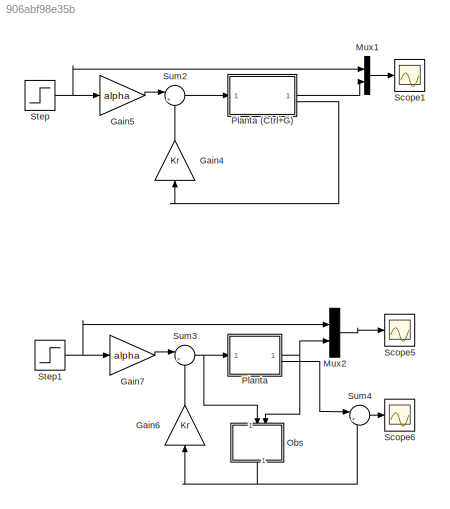
MODEL slx_906abf98e35b
KIND model
CONFIG AbsTol = auto
CONFIG EnableMultiTasking = on
CONFIG FixedStep = auto
CONFIG MaxStep = auto
CONFIG MinStep = auto
CONFIG RelTol = 1e-3
CONFIG SampleTimeConstraint = Unconstrained
CONFIG SolverName = ode45
CONFIG StartTime = 0.0
CONFIG StopTime = 2
BLOCK [Gain] Gain4
  Gain = Kr
  Multiplication = Matrix(K*u)
  NameLocation = right
BLOCK [Gain] Gain5
  Gain = alpha
BLOCK [Gain] Gain6
  Gain = Kr
  Multiplication = Matrix(K*u)
  NameLocation = right
BLOCK [Gain] Gain7
  Gain = alpha
BLOCK [Mux] Mux1
  DisplayOption = bar
  Inputs = 2
BLOCK [Mux] Mux2
  DisplayOption = bar
  Inputs = 2
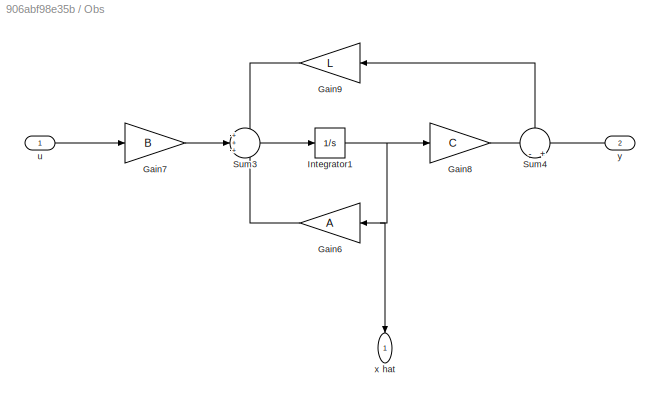
BLOCK [SubSystem] Obs
  NameLocation = left
BLOCK [Gain] Obs/Gain6
  Gain = A
  Multiplication = Matrix(K*u)
  NameLocation = top
BLOCK [Gain] Obs/Gain7
  Gain = B
  Multiplication = Matrix(K*u)
BLOCK [Gain] Obs/Gain8
  Gain = C
  Multiplication = Matrix(K*u)
BLOCK [Gain] Obs/Gain9
  Gain = L
  Multiplication = Matrix(K*u)
  NameLocation = top
BLOCK [Integrator] Obs/Integrator1
  InitialCondition = X0
BLOCK [Sum] Obs/Sum3
  Inputs = +++
BLOCK [Sum] Obs/Sum4
  Inputs = -|+
  NameLocation = right
BLOCK [Inport] Obs/u
BLOCK [Outport] Obs/x hat
  NameLocation = left
BLOCK [Inport] Obs/y
  Port = 2
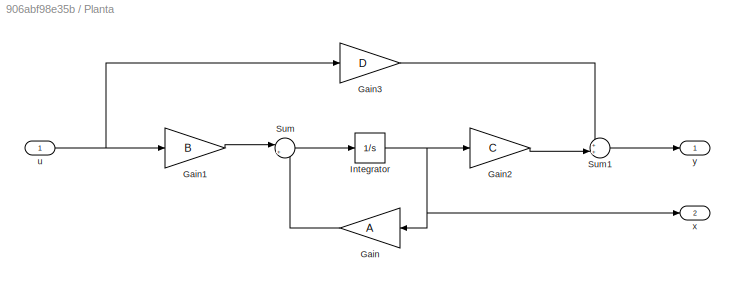
BLOCK [SubSystem] Planta
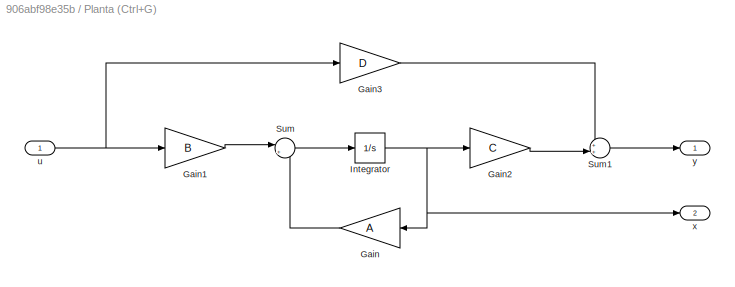
BLOCK [SubSystem] Planta (Ctrl+G)
BLOCK [Gain] Planta (Ctrl+G)/Gain
  Gain = A
  Multiplication = Matrix(K*u)
  NameLocation = top
BLOCK [Gain] Planta (Ctrl+G)/Gain1
  Gain = B
  Multiplication = Matrix(K*u)
BLOCK [Gain] Planta (Ctrl+G)/Gain2
  Gain = C
  Multiplication = Matrix(K*u)
BLOCK [Gain] Planta (Ctrl+G)/Gain3
  Gain = D
  Multiplication = Matrix(K*u)
BLOCK [Integrator] Planta (Ctrl+G)/Integrator
  InitialCondition = x0
BLOCK [Sum] Planta (Ctrl+G)/Sum
  Inputs = |++
BLOCK [Sum] Planta (Ctrl+G)/Sum1
  Inputs = ++|
BLOCK [Inport] Planta (Ctrl+G)/u
BLOCK [Outport] Planta (Ctrl+G)/x
  Port = 2
BLOCK [Outport] Planta (Ctrl+G)/y
BLOCK [Gain] Planta/Gain
  Gain = A
  Multiplication = Matrix(K*u)
  NameLocation = top
BLOCK [Gain] Planta/Gain1
  Gain = B
  Multiplication = Matrix(K*u)
BLOCK [Gain] Planta/Gain2
  Gain = C
  Multiplication = Matrix(K*u)
BLOCK [Gain] Planta/Gain3
  Gain = D
  Multiplication = Matrix(K*u)
BLOCK [Integrator] Planta/Integrator
  InitialCondition = x0
BLOCK [Sum] Planta/Sum
  Inputs = |++
BLOCK [Sum] Planta/Sum1
  Inputs = ++|
BLOCK [Inport] Planta/u
BLOCK [Outport] Planta/x
  Port = 2
BLOCK [Outport] Planta/y
BLOCK [Scope] Scope1
  ActiveDisplayYMaximum = 0.01125
  ActiveDisplayYMinimum = -0.0012499999999999998
  DataLoggingDecimateData = on
  DataLoggingDecimation = 1
  DataLoggingLimitDataPoints = on
  DataLoggingSaveFormat = Structure With Time
  DataLoggingVariableName = ScopeData1
  Floating = off
  GraphicalSettings = {"Style":{"BackgroundColor":[1,1,1],"AxesColor":[1,1,1],"LabelsColor":[0,0,0],"PreserveColors":false,"Visible":[true,true],"LineStyle":["-","--"],"LineWidth":[1,1],"BarWidth":[0.9,0.9],"LineColor":[[0,0,1],[0,0.8,0.2]],"LineFaceAlpha":[1,1],"LineEdgeAlpha":[1,1],"Marker":["none","none"],"FontSize":8.5,"LineTrueColor":[[0,0,1],[0,0.8,0.2]],"ChannelNames":["u(t)","y(t)"],"DefaultLegendLabel":["Step"...<+1812ch>
  MultipleDisplayCache = [{"MaxYLimMag":0.01125,"MaxYLimReal":0.01125,"MinYLimMag":0,"MinYLimReal":-0.0012499999999999998,"PlotAsMagnitudePhase":false,"ShowGrid":true,"ShowLegend":true,"Title":"%<SignalLabel>","YLabel":""}]
  NumInputPorts = 1
  ScopeFrameLocation = window
  ShowLegend = on
  WasSavedAsWebScope = on
  WindowPosition = [488.000000,222.000000,560.000000,420.000000,]
BLOCK [Scope] Scope5
  ActiveDisplayYMaximum = 0.01149049024179721
  ActiveDisplayYMinimum = -0.001710313353439968
  DataLoggingDecimateData = on
  DataLoggingDecimation = 1
  DataLoggingLimitDataPoints = on
  DataLoggingSaveFormat = Structure With Time
  DataLoggingVariableName = ScopeData1
  Floating = off
  GraphicalSettings = {"Style":{"BackgroundColor":[1,1,1],"AxesColor":[1,1,1],"LabelsColor":[0,0,0],"PreserveColors":false,"Visible":[true,true],"LineStyle":["-","--"],"LineWidth":[1,1],"BarWidth":[0.9,0.9],"LineColor":[[0,0,1],[0,0.8,0.2]],"LineFaceAlpha":[1,1],"LineEdgeAlpha":[1,1],"Marker":["none","none"],"FontSize":8.5,"LineTrueColor":[[0,0,1],[0,0.8,0.2]],"ChannelNames":["u(t)","y(t)"],"DefaultLegendLabel":["Step1...<+1863ch>
  MultipleDisplayCache = [{"MaxYLimMag":0.01125,"MaxYLimReal":0.01149049024179721,"MinYLimMag":0,"MinYLimReal":-0.001710313353439968,"PlotAsMagnitudePhase":false,"ShowGrid":true,"ShowLegend":true,"Title":"%<SignalLabel>","YLabel":""}]
  NumInputPorts = 1
  ScopeFrameLocation = window
  ShowLegend = on
  WasSavedAsWebScope = on
  WindowPosition = [488.000000,222.000000,560.000000,420.000000,]
BLOCK [Scope] Scope6
  ActiveDisplayYMaximum = 1
  ActiveDisplayYMinimum = -1
  DataLoggingDecimateData = on
  DataLoggingDecimation = 1
  DataLoggingLimitDataPoints = on
  DataLoggingSaveFormat = Structure With Time
  DataLoggingVariableName = ScopeData2
  Floating = off
  GraphicalSettings = {"AxesScalingProperties":{"AlignXAxis":"Center","AlignYAxis":"Center","AutoScaleXAxisLimits":false,"AxesScaling":"Manual","AxesScalingNumUpdates":10,"ExpandOnly":true,"ScaleAxesLimitsAtStop":false,"XAxisDataRange":100,"YAxisDataRange":80},"DisplayProperties":{"ColorOrder":["auto","auto","auto","auto","auto","auto","auto","auto","auto","auto","auto","auto","auto","auto","auto","auto","auto","auto",...<+1872ch>
  MultipleDisplayCache = [{"MaxYLimMag":1,"MaxYLimReal":1,"MinYLimMag":0,"MinYLimReal":-1,"PlotAsMagnitudePhase":false,"ShowGrid":true,"ShowLegend":true,"Title":"%<SignalLabel>","YLabel":""}]
  NumInputPorts = 1
  ScopeFrameLocation = window
  ShowLegend = on
  WasSavedAsWebScope = on
  WindowPosition = [488.000000,222.000000,560.000000,420.000000,]
BLOCK [Step] Step
  After = r
  SampleTime = 0
BLOCK [Step] Step1
  After = r
  SampleTime = 0
BLOCK [Sum] Sum2
  Inputs = |+-
BLOCK [Sum] Sum3
  Inputs = |+-
BLOCK [Sum] Sum4
  Inputs = |+-
LINE Gain4:1 -> Sum2:2
LINE Gain5:1 -> Sum2:1
LINE Gain6:1 -> Sum3:2
LINE Gain7:1 -> Sum3:1
LINE Mux1:1 -> Scope1:1
LINE Mux2:1 -> Scope5:1
LINE Obs/Gain6:1 -> Obs/Sum3:3
LINE Obs/Gain7:1 -> Obs/Sum3:2
LINE Obs/Gain8:1 -> Obs/Sum4:1
LINE Obs/Gain9:1 -> Obs/Sum3:1
NET Obs/Integrator1:1 -> Obs/Gain6:1, Obs/Gain8:1, Obs/x hat:1
LINE Obs/Sum3:1 -> Obs/Integrator1:1
LINE Obs/Sum4:1 -> Obs/Gain9:1
LINE Obs/u:1 -> Obs/Gain7:1
LINE Obs/y:1 -> Obs/Sum4:2
NET Obs:1 -> Gain6:1, Sum4:2
LINE Planta (Ctrl+G)/Gain1:1 -> Planta (Ctrl+G)/Sum:1
LINE Planta (Ctrl+G)/Gain2:1 -> Planta (Ctrl+G)/Sum1:2
LINE Planta (Ctrl+G)/Gain3:1 -> Planta (Ctrl+G)/Sum1:1
LINE Planta (Ctrl+G)/Gain:1 -> Planta (Ctrl+G)/Sum:2
NET Planta (Ctrl+G)/Integrator:1 -> Planta (Ctrl+G)/Gain2:1, Planta (Ctrl+G)/Gain:1, Planta (Ctrl+G)/x:1
LINE Planta (Ctrl+G)/Sum1:1 -> Planta (Ctrl+G)/y:1
LINE Planta (Ctrl+G)/Sum:1 -> Planta (Ctrl+G)/Integrator:1
NET Planta (Ctrl+G)/u:1 -> Planta (Ctrl+G)/Gain1:1, Planta (Ctrl+G)/Gain3:1
LINE Planta (Ctrl+G):1 -> Mux1:2
LINE Planta (Ctrl+G):2 -> Gain4:1
LINE Planta/Gain1:1 -> Planta/Sum:1
LINE Planta/Gain2:1 -> Planta/Sum1:2
LINE Planta/Gain3:1 -> Planta/Sum1:1
LINE Planta/Gain:1 -> Planta/Sum:2
NET Planta/Integrator:1 -> Planta/Gain2:1, Planta/Gain:1, Planta/x:1
LINE Planta/Sum1:1 -> Planta/y:1
LINE Planta/Sum:1 -> Planta/Integrator:1
NET Planta/u:1 -> Planta/Gain1:1, Planta/Gain3:1
NET Planta:1 -> Mux2:2, Obs:2
LINE Planta:2 -> Sum4:1
NET Step1:1 -> Gain7:1, Mux2:1
NET Step:1 -> Gain5:1, Mux1:1
LINE Sum2:1 -> Planta (Ctrl+G):1
NET Sum3:1 -> Obs:1, Planta:1
LINE Sum4:1 -> Scope6:1
note: NET lines group one-source signal fan-out (src -> all destinations, sorted); 1:1 wires keep LINE
